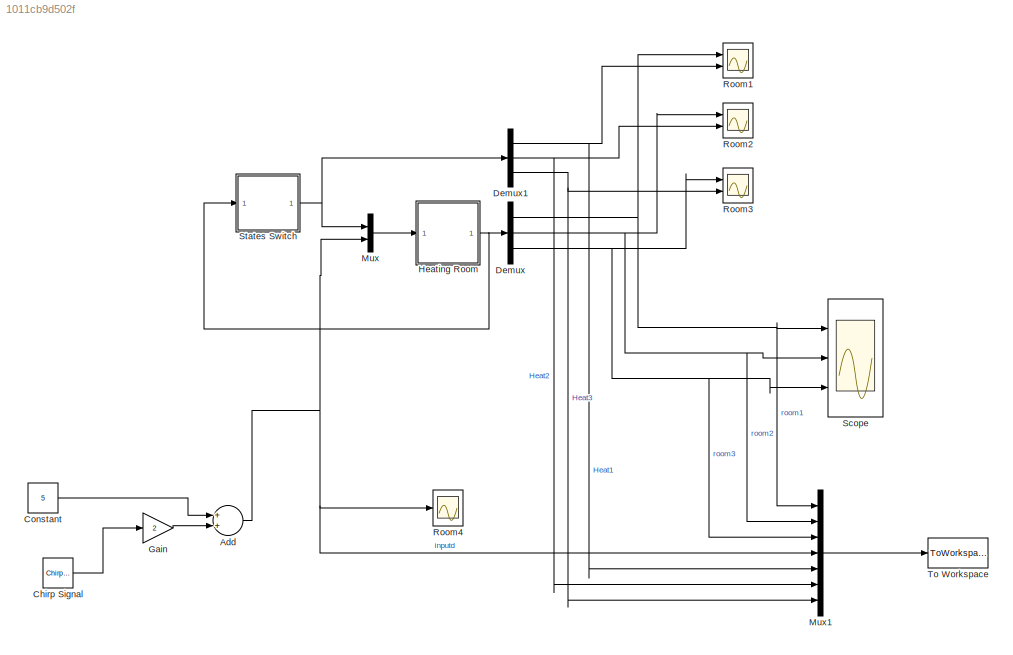
MODEL slx_1011cb9d502f
KIND model
CONFIG AbsTol = auto
CONFIG EnableMultiTasking = off
CONFIG FixedStep = 0.1
CONFIG MaxStep = 0.1
CONFIG MinStep = auto
CONFIG RelTol = 1e-3
CONFIG SampleTimeConstraint = Unconstrained
CONFIG Solver = FixedStepAuto
CONFIG SolverName = FixedStepAuto
CONFIG StartTime = 0.0
CONFIG StopTime = T
BLOCK [Sum] Add
  InputSameDT = off
  OutDataTypeStr = Inherit: Inherit via internal rule
  Ports = [2, 1]
  SaturateOnIntegerOverflow = off
BLOCK [Reference] Chirp Signal  REF=simulink/Sources/Chirp Signal
  Ports = [0, 1]
  SourceBlock = simulink/Sources/Chirp Signal
  SourceProductBaseCode = SL
  SourceProductName = Simulink
  SourceType = chirp
BLOCK [Constant] Constant
  Value = 5
BLOCK [Demux] Demux
  DisplayOption = bar
  Outputs = 3
  Ports = [1, 3]
BLOCK [Demux] Demux1
  DisplayOption = bar
  Outputs = 3
  Ports = [1, 3]
BLOCK [Gain] Gain
  Gain = 2
  OutDataTypeStr = Inherit: Inherit via internal rule
  ParamDataTypeStr = Inherit: Inherit via internal rule
  SaturateOnIntegerOverflow = off
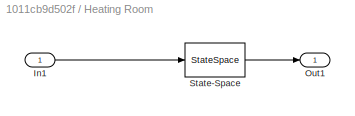
BLOCK [SubSystem] Heating Room
  Ports = [1, 1]
  RequestExecContextInheritance = off
BLOCK [Inport] Heating Room/In1
  IconDisplay = Port number
BLOCK [Outport] Heating Room/Out1
  IconDisplay = Port number
BLOCK [StateSpace] Heating Room/State-Space
  A = [  -0.1000    0.03000    0.04000;\n    0.03000   -0.10000    0.05000 ;\n    0.04000    0.05000   -0.14]
  B = [    0.90000         0           0    0.03000;         0    0.70000       0    0.02000;         0         0   1.10000     0.05000]
  C = eye(3,3)
  D = zeros(3,4)
  InitialCondition = x_init
  Ports = [1, 1]
BLOCK [Mux] Mux
  DisplayOption = bar
  Inputs = 2
  Ports = [2, 1]
BLOCK [Mux] Mux1
  DisplayOption = bar
  Inputs = 7
  Ports = [7, 1]
BLOCK [Scope] Room1
  Floating = off
  NumInputPorts = 2
  Ports = [2]
  ScopeSpecificationString = Simulink.scopes.TimeScopeBlockCfg('CurrentConfiguration', extmgr.ConfigurationSet(extmgr.Configuration('Core','General UI',true,'FigureColor',[1 1 1]),extmgr.Configuration('Core','Source UI',true),extmgr.Configuration('Sources','WiredSimulink',true,'DataLoggingVariableName','ScopeData1'),extmgr.Configuration('Visuals','Time Domain',true,'SerializedDisplays',{struct('MinYLimReal','6.01738','MaxYLim...<+2252ch>
BLOCK [Scope] Room2
  Floating = off
  NumInputPorts = 2
  Ports = [2]
  ScopeSpecificationString = Simulink.scopes.TimeScopeBlockCfg('CurrentConfiguration', extmgr.ConfigurationSet(extmgr.Configuration('Core','General UI',true,'FigureColor',[1 1 1]),extmgr.Configuration('Core','Source UI',true),extmgr.Configuration('Sources','WiredSimulink',true,'DataLoggingVariableName','ScopeData2'),extmgr.Configuration('Visuals','Time Domain',true,'SerializedDisplays',{struct('MinYLimReal','15.39774','MaxYLi...<+2289ch>
BLOCK [Scope] Room3
  Floating = off
  NumInputPorts = 2
  Ports = [2]
  ScopeSpecificationString = Simulink.scopes.TimeScopeBlockCfg('CurrentConfiguration', extmgr.ConfigurationSet(extmgr.Configuration('Core','General UI',true,'FigureColor',[1 1 1]),extmgr.Configuration('Core','Source UI',true),extmgr.Configuration('Sources','WiredSimulink',true,'DataLoggingVariableName','ScopeData3'),extmgr.Configuration('Visuals','Time Domain',true,'SerializedDisplays',{struct('MinYLimReal','2.16399','MaxYLim...<+2309ch>
BLOCK [Scope] Room4
  Floating = off
  NumInputPorts = 1
  Ports = [1]
  ScopeSpecificationString = Simulink.scopes.TimeScopeBlockCfg('CurrentConfiguration', extmgr.ConfigurationSet(extmgr.Configuration('Core','General UI',true,'FigureColor',[1 1 1]),extmgr.Configuration('Core','Source UI',true),extmgr.Configuration('Sources','WiredSimulink',true,'DataLoggingVariableName','ScopeData1'),extmgr.Configuration('Visuals','Time Domain',true,'SerializedDisplays',{struct('MinYLimReal','-7.00013','MaxYLi...<+2305ch>
BLOCK [Scope] Scope
  Floating = off
  NumInputPorts = 3
  Ports = [3]
  ScopeSpecificationString = Simulink.scopes.TimeScopeBlockCfg('CurrentConfiguration', extmgr.ConfigurationSet(extmgr.Configuration('Core','General UI',true),extmgr.Configuration('Core','Source UI',true),extmgr.Configuration('Sources','WiredSimulink',true,'DataLoggingVariableName','TempHeat','DataLoggingSaveFormat','Array'),extmgr.Configuration('Visuals','Time Domain',true,'SerializedDisplays',{struct('MinYLimReal','12.28826'...<+1484ch>
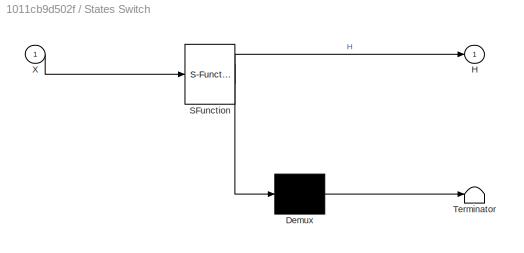
BLOCK [SubSystem] States Switch
  ErrorFcn = Stateflow.Translate.translate
  PermitHierarchicalResolution = ExplicitOnly
  Ports = [1, 1]
  RequestExecContextInheritance = off
  SFBlockType = Chart
  TreatAsAtomicUnit = on
BLOCK [Demux] States Switch/ Demux 
  Outputs = 1
  Ports = [1, 1]
BLOCK [S-Function] States Switch/ SFunction 
  EnableBusSupport = on
  FunctionName = sf_sfun
  PortCounts = [1 2]
  Ports = [1, 2]
  SFcnIsStateOwnerBlock = off
  SFunctionDeploymentMode = off
  Tag = Stateflow S-Function HeatingSystem 3
BLOCK [Terminator] States Switch/ Terminator 
BLOCK [Outport] States Switch/H
  IconDisplay = Port number
BLOCK [Inport] States Switch/X
  IconDisplay = Port number
BLOCK [ToWorkspace] To Workspace
  FixptAsFi = on
  MaxDataPoints = inf
  Ports = [1]
  SampleTime = 0.1
  Save2DSignal = 3-D array (concatenate along third dimension)
  VariableName = xout
NET Add:1 -> Mux1:4, Mux:2, Room4:1
LINE Chirp Signal:1 -> Gain:1
LINE Constant:1 -> Add:1
NET Demux1:1 -> Mux1:5, Room1:2
NET Demux1:2 -> Mux1:6, Room2:2
NET Demux1:3 -> Mux1:7, Room3:2
NET Demux:1 -> Mux1:1, Room1:1, Scope:1
NET Demux:2 -> Mux1:2, Room2:1, Scope:2
NET Demux:3 -> Mux1:3, Room3:1, Scope:3
LINE Gain:1 -> Add:2
LINE Heating Room/In1:1 -> Heating Room/State-Space:1
LINE Heating Room/State-Space:1 -> Heating Room/Out1:1
NET Heating Room:1 -> Demux:1, States Switch:1
LINE Mux1:1 -> To Workspace:1
LINE Mux:1 -> Heating Room:1
NET States Switch:1 -> Demux1:1, Mux:1
note: NET lines group one-source signal fan-out (src -> all destinations, sorted); 1:1 wires keep LINE
CHART States Switch states=9 transitions=13
  STATE_LABEL 's1\n'
  STATE_LABEL 's1_2\n\nentry:\nH(1) = 1;\nH(2) = 0;\nH(3) = 0;\n%out=H;\n%during:\n%out = H;\n'
  STATE_LABEL 's1_1\n\nentry:\nH(1) = 0;\nH(2) = 0;\nH(3) = 0;\n%out=H;\n%during:\n%out = H;\n'
  STATE_LABEL '[X(1)<=20]{H(1)=1;}'
  STATE_LABEL '[X(1)>=21]{H(1)=0;}'
  STATE_LABEL 's1_2\n\nentry:\nH(1) = 1;\nH(2) = 0;\nH(3) = 0;\n%out=H;\n%during:\n%out = H;\n'
  STATE_LABEL 's1_1\n\nentry:\nH(1) = 0;\nH(2) = 0;\nH(3) = 0;\n%out=H;\n%during:\n%out = H;\n'
  STATE_LABEL 's2\n\n'
  STATE_LABEL 's2_2\n\nentry:\nH(1) = 0;\nH(2) = 1;\nH(3) = 0;\n%out=H;\n%during:\n%out = H;\n'
  STATE_LABEL 's2_1\n\nentry:\nH(1) = 0;\nH(2) = 0;\nH(3) = 0;\n%out=H;\n%during:\n%out = H;\n'
  STATE_LABEL '[X(2)<=19]{H(2)=1;}'
  STATE_LABEL '[X(2)>=21]{H(2)=0;}'
  STATE_LABEL 's2_2\n\nentry:\nH(1) = 0;\nH(2) = 1;\nH(3) = 0;\n%out=H;\n%during:\n%out = H;\n'
  STATE_LABEL 's2_1\n\nentry:\nH(1) = 0;\nH(2) = 0;\nH(3) = 0;\n%out=H;\n%during:\n%out = H;\n'
  STATE_LABEL 's3\n'
  STATE_LABEL 's3_1\n\nentry:\nH(1) = 0;\nH(2) = 0;\nH(3) = 0;\n%out=H;\n%during:\n%out = H;\n'
  STATE_LABEL 's3_2\n\nentry:\nH(1) = 0;\nH(2) = 0;\nH(3) = 1;\n%out=H;\n%during:\n%out = H;\n'
  STATE_LABEL '[X(3)<=19]{H(3)=1;}'
  STATE_LABEL '[X(3)>=22]{H(3)=0;}'
  STATE_LABEL 's3_1\n\nentry:\nH(1) = 0;\nH(2) = 0;\nH(3) = 0;\n%out=H;\n%during:\n%out = H;\n'
  STATE_LABEL 's3_2\n\nentry:\nH(1) = 0;\nH(2) = 0;\nH(3) = 1;\n%out=H;\n%during:\n%out = H;\n'
